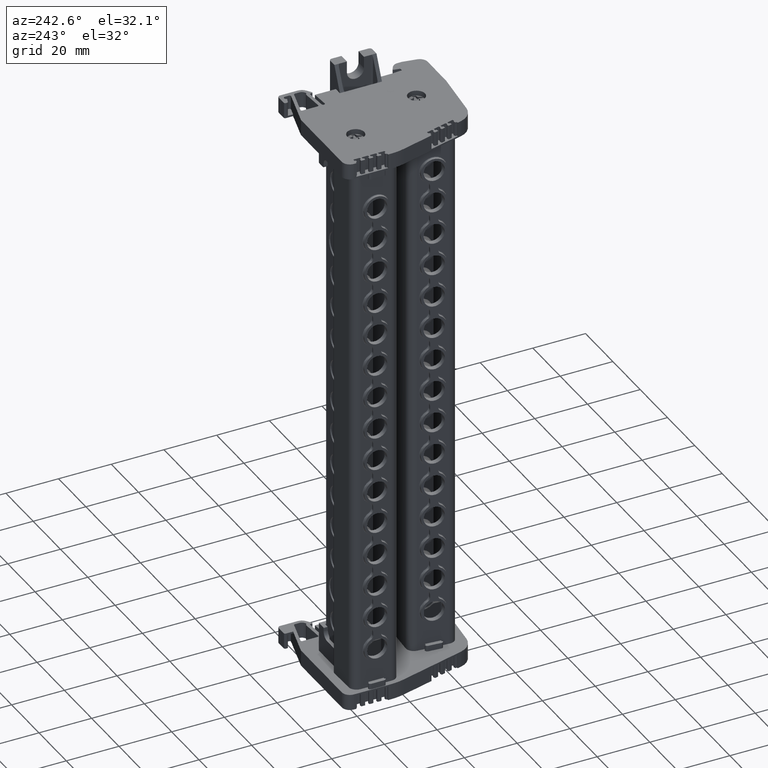
[diagram: clean part render]
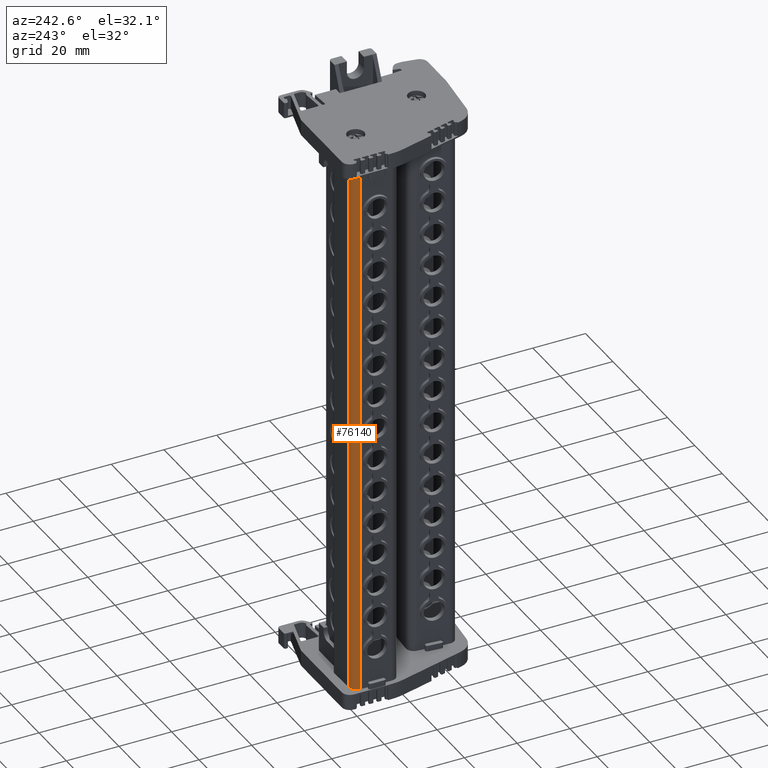
[diagram: same view with one face highlighted and labeled with its STEP entity id]
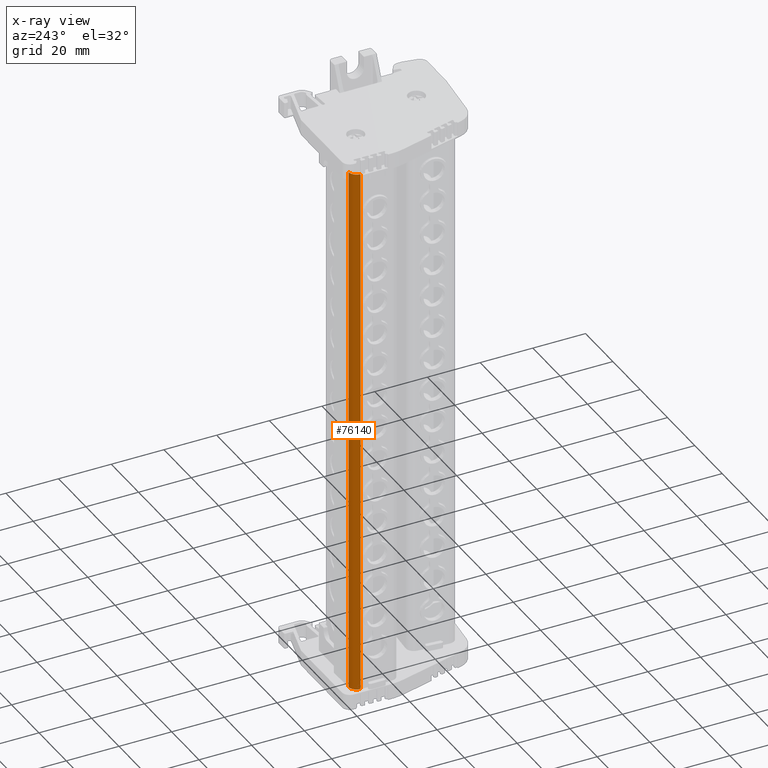
[diagram: x-ray of the same camera — body ghosted, the highlighted face saturated]
A machine part, auxiliary view. The second image highlights one B-rep face of the part: STEP entity #76140.
The next image is the same camera in x-ray: the body ghosted, the highlighted face saturated — about 0% of this face is hidden behind the body in this view.
In plain terms, the highlighted cylindrical surface (edge-blend (fillet) strip) has radius 2.9988 mm, axis along (0, -0, 1).
Its self-contained STEP definition (entity closure, byte-faithful):
#30851 = CARTESIAN_POINT ( 'NONE',  ( 1871.026458841194900, 804.9093018450765800, 6.170753956351533500 ) ) ;
#30856 = DIRECTION ( 'NONE',  ( 5.407004679039097100E-016, -1.450119137268832300E-009, 1.000000000000000000 ) ) ;
#30859 = DIRECTION ( 'NONE',  ( 0.0000000000000000000, -1.000000000000000000, -1.450119101729775600E-009 ) ) ;
#33466 = EDGE_CURVE ( 'NONE', #80527, #80570, #90589, .T. ) ;
#34178 = EDGE_CURVE ( 'NONE', #80609, #80570, #46558, .T. ) ;
#34264 = EDGE_CURVE ( 'NONE', #91805, #80609, #89536, .T. ) ;
#34342 = EDGE_CURVE ( 'NONE', #91805, #80527, #46343, .T. ) ;
#41494 = CARTESIAN_POINT ( 'NONE',  ( 1870.974121168538200, 807.9076527212537300, 6.170753960633976300 ) ) ;
#41571 = CARTESIAN_POINT ( 'NONE',  ( 1868.027651210043800, 804.9093014737565000, 211.0203038005998100 ) ) ;
#41613 = CARTESIAN_POINT ( 'NONE',  ( 1868.027651210043800, 804.9093016965484800, 6.170753958590427900 ) ) ;
#44509 = CARTESIAN_POINT ( 'NONE',  ( 1870.974121169834200, 807.9076524242201500, 211.0203038027737500 ) ) ;
#46203 = DIRECTION ( 'NONE',  ( 5.407004679039097100E-016, -1.450119137268832300E-009, 1.000000000000000000 ) ) ;
#46212 = DIRECTION ( 'NONE',  ( 0.0000000000000000000, -1.000000000000000000, -1.450120547907464800E-009 ) ) ;
#46229 = CARTESIAN_POINT ( 'NONE',  ( 1871.026458841194900, 804.9093015480203800, 211.0203038005997800 ) ) ;
#46343 = LINE ( 'NONE', #46369, #89597 ) ;
#46369 = CARTESIAN_POINT ( 'NONE',  ( 1870.974121169834200, 807.9076526660848000, 44.23084937573586500 ) ) ;
#46383 = DIRECTION ( 'NONE',  ( -5.407004679039097100E-016, 1.450119137268832300E-009, -1.000000000000000000 ) ) ;
#46558 = LINE ( 'NONE', #46577, #89476 ) ;
#46577 = CARTESIAN_POINT ( 'NONE',  ( 1868.027651210043800, 804.9093015480203800, 44.23084939672865100 ) ) ;
#46601 = DIRECTION ( 'NONE',  ( -5.407004948520647200E-016, 1.004658310421972500E-029, -1.000000000000000000 ) ) ;
#47555 = EDGE_LOOP ( 'NONE', ( #57133, #57131, #57085, #57185 ) ) ;
#57085 = ORIENTED_EDGE ( 'NONE', *, *, #34342, .T. ) ;
#57131 = ORIENTED_EDGE ( 'NONE', *, *, #34264, .F. ) ;
#57133 = ORIENTED_EDGE ( 'NONE', *, *, #34178, .F. ) ;
#57185 = ORIENTED_EDGE ( 'NONE', *, *, #33466, .T. ) ;
#59029 = DIRECTION ( 'NONE',  ( 0.0000000000000000000, -1.000000000000000000, -1.450118234023162200E-009 ) ) ;
#59034 = DIRECTION ( 'NONE',  ( 5.407004679039097100E-016, -1.450119137268832300E-009, 1.000000000000000000 ) ) ;
#59049 = CARTESIAN_POINT ( 'NONE',  ( 1871.026458841194900, 804.9093017898849200, 44.23084937138789700 ) ) ;
#59057 = CYLINDRICAL_SURFACE ( 'NONE', #65413, 2.998807631151345600 ) ;
#59072 = FACE_OUTER_BOUND ( 'NONE', #47555, .T. ) ;
#65413 = AXIS2_PLACEMENT_3D ( 'NONE', #59049, #59034, #59029 ) ;
#76140 = ADVANCED_FACE ( 'NONE', ( #59072 ), #59057, .T. ) ;
#80527 = VERTEX_POINT ( 'NONE', #41494 ) ;
#80570 = VERTEX_POINT ( 'NONE', #41613 ) ;
#80609 = VERTEX_POINT ( 'NONE', #41571 ) ;
#89476 = VECTOR ( 'NONE', #46601, 1000.000000000000000 ) ;
#89536 = CIRCLE ( 'NONE', #89589, 2.998807631151345600 ) ;
#89589 = AXIS2_PLACEMENT_3D ( 'NONE', #46229, #46203, #46212 ) ;
#89597 = VECTOR ( 'NONE', #46383, 1000.000000000000000 ) ;
#90589 = CIRCLE ( 'NONE', #90602, 2.998807631151345600 ) ;
#90602 = AXIS2_PLACEMENT_3D ( 'NONE', #30851, #30856, #30859 ) ;
#91805 = VERTEX_POINT ( 'NONE', #44509 ) ;